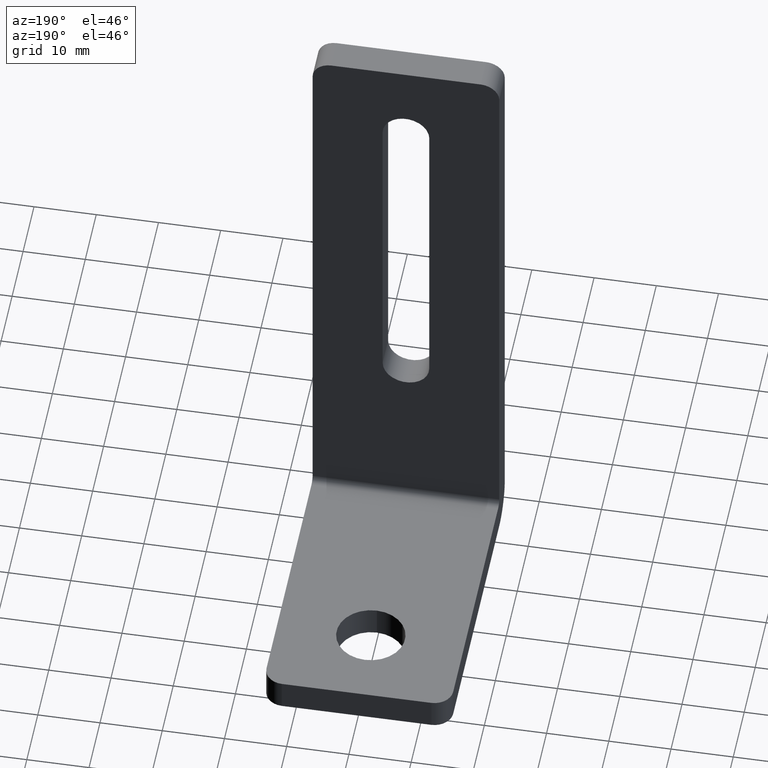
[diagram: clean part render]
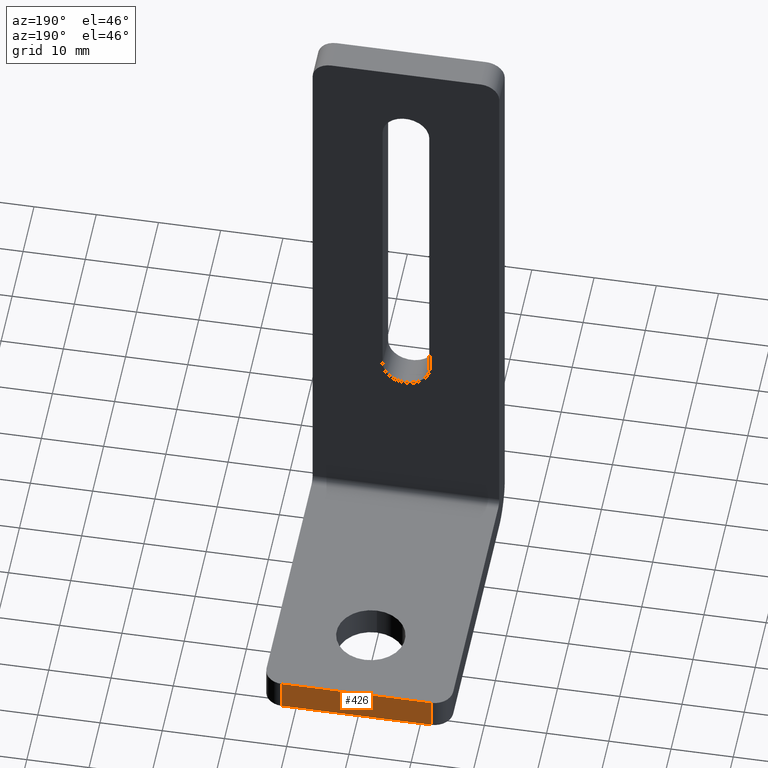
[diagram: same view with one face highlighted and labeled with its STEP entity id]
A machine part, auxiliary view. The second image highlights one B-rep face of the part: STEP entity #426.
In plain terms, the highlighted planar face has unit normal (0, 1, 0).
Its self-contained STEP definition (entity closure, byte-faithful):
#270=CARTESIAN_POINT('',(12.0,13.000000000001819,4.999999999999999));
#271=VERTEX_POINT('',#270);
#281=CARTESIAN_POINT('',(-12.0,13.000000000001819,4.999999999999999));
#282=VERTEX_POINT('',#281);
#283=CARTESIAN_POINT('',(-12.0,13.000000000001819,4.999999999999999));
#284=DIRECTION('',(1.0,0.0,0.0));
#285=VECTOR('',#284,24.0);
#286=LINE('',#283,#285);
#287=EDGE_CURVE('',#282,#271,#286,.T.);
#323=CARTESIAN_POINT('',(12.0,13.000000000001819,-7.960204E-016));
#324=VERTEX_POINT('',#323);
#325=CARTESIAN_POINT('',(12.0,13.000000000001819,-7.960204E-016));
#326=DIRECTION('',(0.0,0.0,1.0));
#327=VECTOR('',#326,5.0);
#328=LINE('',#325,#327);
#329=EDGE_CURVE('',#324,#271,#328,.T.);
#364=CARTESIAN_POINT('',(-12.0,13.000000000001819,-7.960204E-016));
#365=VERTEX_POINT('',#364);
#373=CARTESIAN_POINT('',(-12.0,13.000000000001819,-7.960204E-016));
#374=DIRECTION('',(1.0,0.0,0.0));
#375=VECTOR('',#374,24.0);
#376=LINE('',#373,#375);
#377=EDGE_CURVE('',#365,#324,#376,.T.);
#406=CARTESIAN_POINT('',(-12.0,13.000000000001819,-7.960204E-016));
#407=DIRECTION('',(0.0,0.0,1.0));
#408=VECTOR('',#407,5.0);
#409=LINE('',#406,#408);
#410=EDGE_CURVE('',#365,#282,#409,.T.);
#415=CARTESIAN_POINT('',(-15.0,13.000000000001819,-7.960204E-016));
#416=DIRECTION('',(0.0,1.0,0.0));
#417=DIRECTION('',(0.0,0.0,1.0));
#418=AXIS2_PLACEMENT_3D('',#415,#416,#417);
#419=PLANE('',#418);
#420=ORIENTED_EDGE('',*,*,#410,.T.);
#421=ORIENTED_EDGE('',*,*,#287,.T.);
#422=ORIENTED_EDGE('',*,*,#329,.F.);
#423=ORIENTED_EDGE('',*,*,#377,.F.);
#424=EDGE_LOOP('',(#420,#421,#422,#423));
#425=FACE_OUTER_BOUND('',#424,.T.);
#426=ADVANCED_FACE('',(#425),#419,.T.);